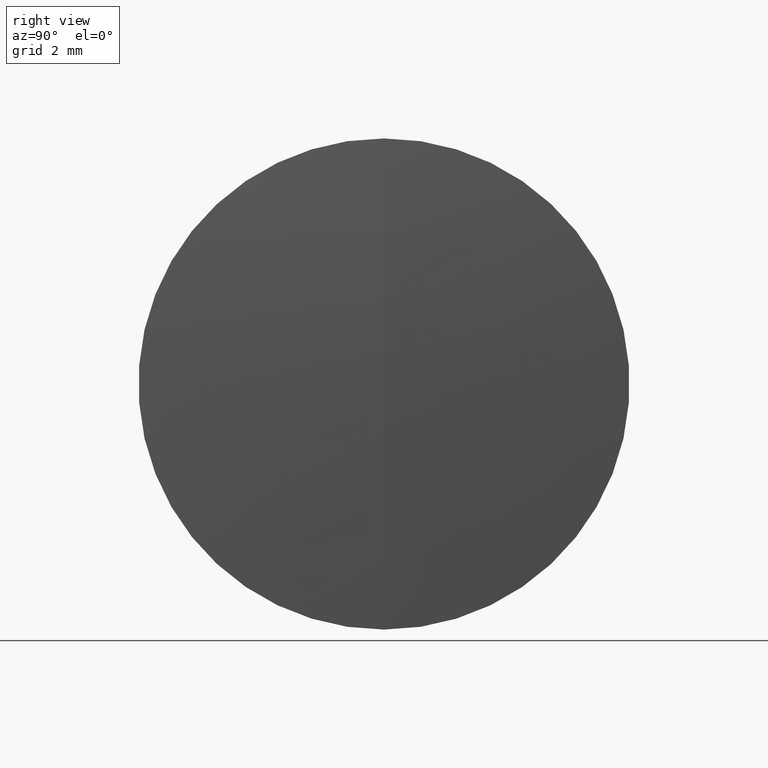
[diagram: clean part render]
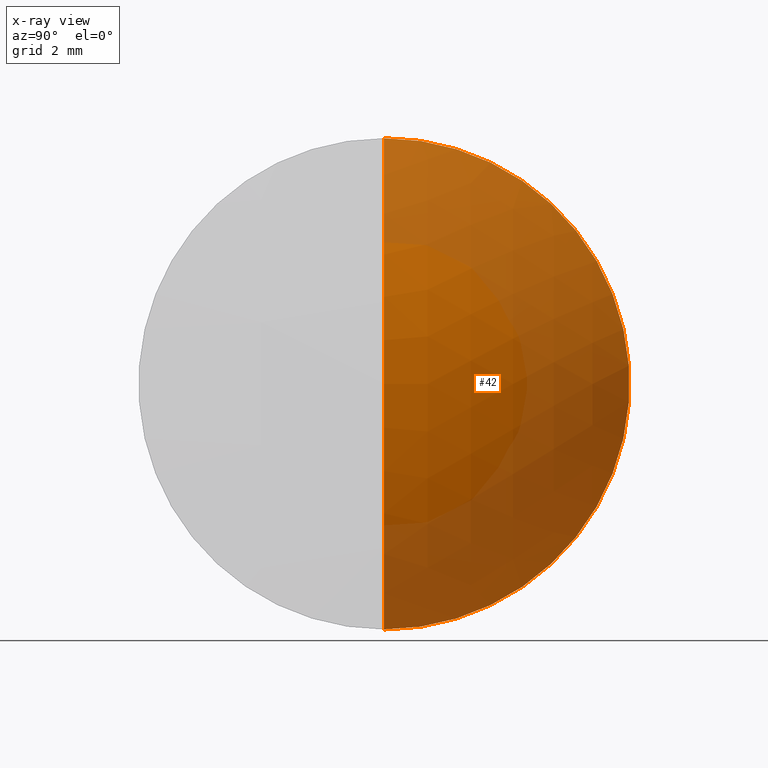
[diagram: x-ray — body ghosted, one internal face saturated and labeled with its STEP entity id]
A machine part, right view, then the same camera in x-ray: the body is ghosted and one INTERNAL B-rep face — a face not visible from any outside direction — is saturated and labeled: STEP entity #42.
In plain terms, the highlighted spherical surface has radius 10.6 mm.
Its self-contained STEP definition (entity closure, byte-faithful):
#7 = DIRECTION ( 'NONE',  ( 0.0000000000000000000, 0.0000000000000000000, -1.000000000000000000 ) ) ;
#15 = CARTESIAN_POINT ( 'NONE',  ( 260.7089566504702100, 0.0000000000000000000, -3.469446951953614200E-015 ) ) ;
#17 = EDGE_CURVE ( 'NONE', #92, #322, #39, .T. ) ;
#37 = DIRECTION ( 'NONE',  ( 0.0000000000000000000, -1.000000000000000000, 0.0000000000000000000 ) ) ;
#39 = CIRCLE ( 'NONE', #107, 6.349999999999996100 ) ;
#42 = ADVANCED_FACE ( 'NONE', ( #204 ), #126, .T. ) ;
#66 = CARTESIAN_POINT ( 'NONE',  ( 269.1964474457524300, 7.776507174585689200E-016, -6.349999999999996100 ) ) ;
#70 = DIRECTION ( 'NONE',  ( 0.0000000000000000000, 1.000000000000000000, 0.0000000000000000000 ) ) ;
#92 = VERTEX_POINT ( 'NONE', #289 ) ;
#94 = DIRECTION ( 'NONE',  ( -1.000000000000000000, -0.0000000000000000000, -0.0000000000000000000 ) ) ;
#107 = AXIS2_PLACEMENT_3D ( 'NONE', #137, #94, #171 ) ;
#109 = VERTEX_POINT ( 'NONE', #196 ) ;
#116 = ORIENTED_EDGE ( 'NONE', *, *, #155, .F. ) ;
#121 = CIRCLE ( 'NONE', #275, 10.60000000000001600 ) ;
#126 = SPHERICAL_SURFACE ( 'NONE', #179, 10.60000000000001600 ) ;
#128 = DIRECTION ( 'NONE',  ( -0.0000000000000000000, 1.000000000000000000, 1.224646799147353200E-016 ) ) ;
#137 = CARTESIAN_POINT ( 'NONE',  ( 269.1964474457524300, 0.0000000000000000000, 0.0000000000000000000 ) ) ;
#150 = CIRCLE ( 'NONE', #312, 10.60000000000001600 ) ;
#155 = EDGE_CURVE ( 'NONE', #109, #92, #150, .T. ) ;
#171 = DIRECTION ( 'NONE',  ( 0.0000000000000000000, 0.0000000000000000000, 1.000000000000000000 ) ) ;
#172 = CARTESIAN_POINT ( 'NONE',  ( 260.7089566504702100, 0.0000000000000000000, -3.469446951953614200E-015 ) ) ;
#179 = AXIS2_PLACEMENT_3D ( 'NONE', #172, #70, #198 ) ;
#185 = ORIENTED_EDGE ( 'NONE', *, *, #209, .T. ) ;
#196 = CARTESIAN_POINT ( 'NONE',  ( 271.3089566504702400, 0.0000000000000000000, -2.820384148405516000E-015 ) ) ;
#198 = DIRECTION ( 'NONE',  ( 0.0000000000000000000, 0.0000000000000000000, 1.000000000000000000 ) ) ;
#204 = FACE_OUTER_BOUND ( 'NONE', #298, .T. ) ;
#209 = EDGE_CURVE ( 'NONE', #109, #322, #121, .T. ) ;
#238 = CARTESIAN_POINT ( 'NONE',  ( 260.7089566504702100, 0.0000000000000000000, -3.469446951953614200E-015 ) ) ;
#268 = DIRECTION ( 'NONE',  ( 0.0000000000000000000, -1.224646799147353200E-016, 1.000000000000000000 ) ) ;
#269 = ORIENTED_EDGE ( 'NONE', *, *, #17, .F. ) ;
#275 = AXIS2_PLACEMENT_3D ( 'NONE', #15, #128, #268 ) ;
#289 = CARTESIAN_POINT ( 'NONE',  ( 269.1964474457524300, 0.0000000000000000000, 6.349999999999996100 ) ) ;
#298 = EDGE_LOOP ( 'NONE', ( #116, #185, #269 ) ) ;
#312 = AXIS2_PLACEMENT_3D ( 'NONE', #238, #37, #7 ) ;
#322 = VERTEX_POINT ( 'NONE', #66 ) ;